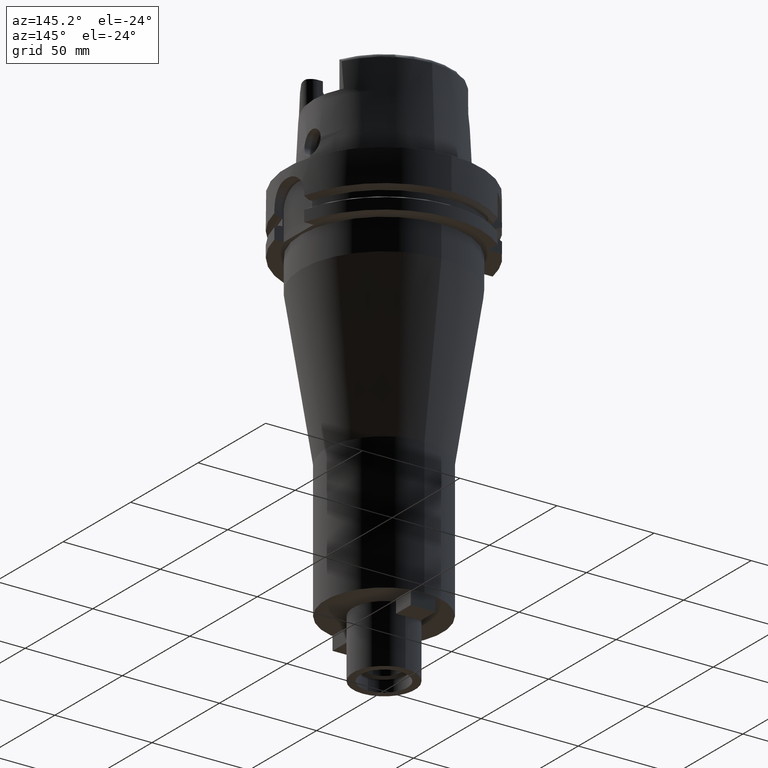
[diagram: clean part render]
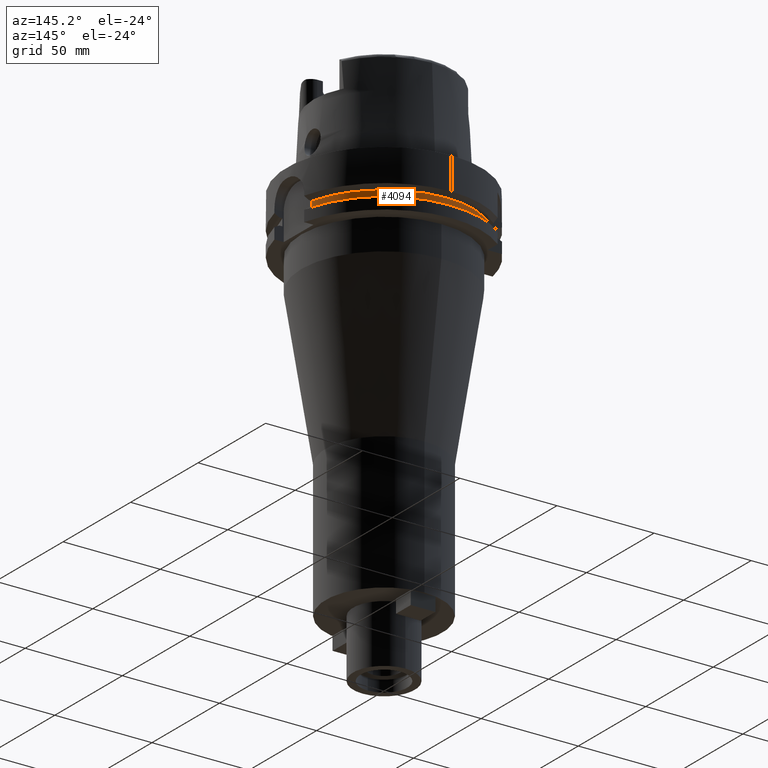
[diagram: same view with one face highlighted and labeled with its STEP entity id]
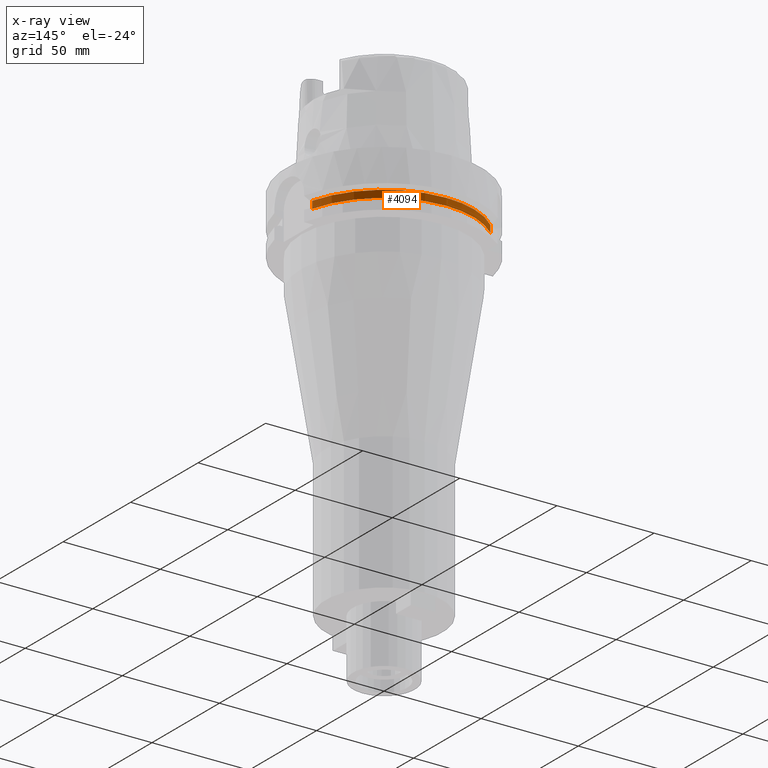
[diagram: x-ray of the same camera — body ghosted, the highlighted face saturated]
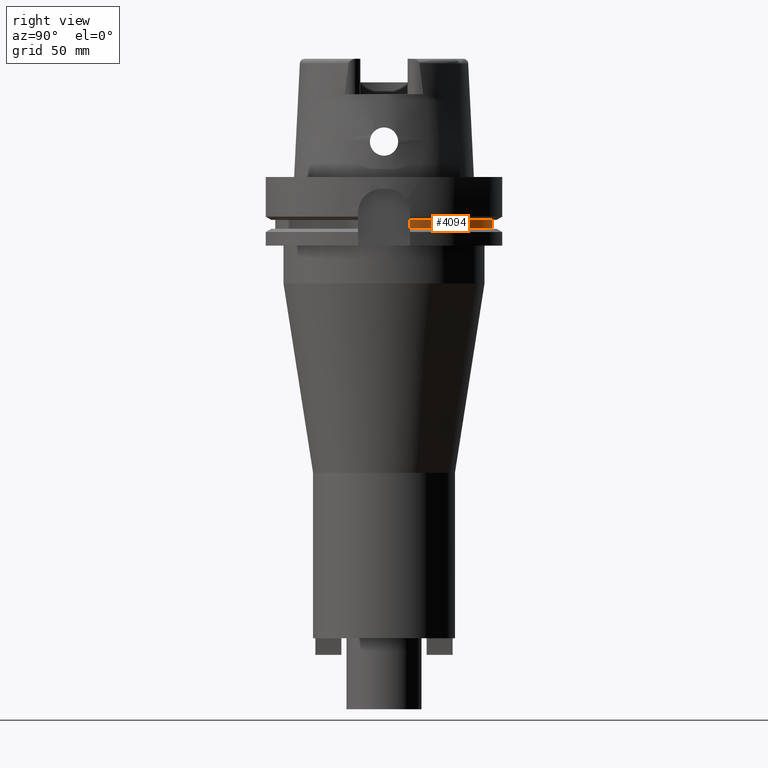
[diagram: same view with one face highlighted and labeled with its STEP entity id]
A machine part, auxiliary view. The second image highlights one B-rep face of the part: STEP entity #4094.
The next image is the same camera in x-ray: the body ghosted, the highlighted face saturated — about 0% of this face is hidden behind the body in this view.
A second angle (right view) of the same face is appended — the face is thin or edge-on in the first view.
In plain terms, the highlighted cylindrical surface (partial cylindrical patch) has radius 46 mm, axis along (0, 0, 1).
Its self-contained STEP definition (entity closure, byte-faithful):
#1648=CARTESIAN_POINT('',(0.E0,0.E0,-1.8125E1));
#1649=DIRECTION('',(0.E0,0.E0,-1.E0));
#1650=DIRECTION('',(-6.847826086957E-1,7.287474039940E-1,0.E0));
#1651=AXIS2_PLACEMENT_3D('',#1648,#1649,#1650);
#1656=CARTESIAN_POINT('',(0.E0,0.E0,-1.8125E1));
#1657=DIRECTION('',(0.E0,0.E0,-1.E0));
#1658=DIRECTION('',(0.E0,1.E0,0.E0));
#1659=AXIS2_PLACEMENT_3D('',#1656,#1657,#1658);
#1687=DIRECTION('',(0.E0,0.E0,-1.E0));
#1688=VECTOR('',#1687,3.75E0);
#1689=CARTESIAN_POINT('',(-3.15E1,3.352238058372E1,-1.8125E1));
#1690=LINE('',#1689,#1688);
#1694=DIRECTION('',(0.E0,0.E0,1.E0));
#1695=VECTOR('',#1694,3.75E0);
#1696=CARTESIAN_POINT('',(4.466542286825E1,1.1E1,-2.1875E1));
#1697=LINE('',#1696,#1695);
#1724=CARTESIAN_POINT('',(0.E0,0.E0,-2.1875E1));
#1725=DIRECTION('',(0.E0,0.E0,1.E0));
#1726=DIRECTION('',(9.709874536577E-1,2.391304347826E-1,0.E0));
#1727=AXIS2_PLACEMENT_3D('',#1724,#1725,#1726);
#1732=CARTESIAN_POINT('',(0.E0,0.E0,-2.1875E1));
#1733=DIRECTION('',(0.E0,0.E0,1.E0));
#1734=DIRECTION('',(0.E0,1.E0,0.E0));
#1735=AXIS2_PLACEMENT_3D('',#1732,#1733,#1734);
#2653=CARTESIAN_POINT('',(-3.15E1,3.352238058372E1,-2.1875E1));
#2654=VERTEX_POINT('',#2653);
#2655=CARTESIAN_POINT('',(-3.15E1,3.352238058372E1,-1.8125E1));
#2656=VERTEX_POINT('',#2655);
#2717=CARTESIAN_POINT('',(4.466542286825E1,1.1E1,-2.1875E1));
#2718=VERTEX_POINT('',#2717);
#2719=CARTESIAN_POINT('',(6.059874544424E-14,4.6E1,-2.1875E1));
#2720=VERTEX_POINT('',#2719);
#2727=CARTESIAN_POINT('',(4.466542286825E1,1.1E1,-1.8125E1));
#2728=VERTEX_POINT('',#2727);
#2729=CARTESIAN_POINT('',(-1.953992523340E-14,4.6E1,-1.8125E1));
#2730=VERTEX_POINT('',#2729);
#4079=CARTESIAN_POINT('',(0.E0,0.E0,-2.3875E2));
#4080=DIRECTION('',(0.E0,0.E0,1.E0));
#4081=DIRECTION('',(0.E0,1.E0,0.E0));
#4082=AXIS2_PLACEMENT_3D('',#4079,#4080,#4081);
#4083=CYLINDRICAL_SURFACE('',#4082,4.6E1);
#4084=ORIENTED_EDGE('',*,*,#3781,.T.);
#4086=ORIENTED_EDGE('',*,*,#4085,.F.);
#4088=ORIENTED_EDGE('',*,*,#4087,.F.);
#4089=ORIENTED_EDGE('',*,*,#3829,.T.);
#4090=ORIENTED_EDGE('',*,*,#4071,.F.);
#4091=ORIENTED_EDGE('',*,*,#4069,.F.);
#4092=EDGE_LOOP('',(#4084,#4086,#4088,#4089,#4090,#4091));
#4093=FACE_OUTER_BOUND('',#4092,.F.);
#1652=CIRCLE('',#1651,4.6E1);
#1660=CIRCLE('',#1659,4.6E1);
#1728=CIRCLE('',#1727,4.6E1);
#1736=CIRCLE('',#1735,4.6E1);
#3781=EDGE_CURVE('',#2656,#2654,#1690,.T.);
#3829=EDGE_CURVE('',#2718,#2728,#1697,.T.);
#4069=EDGE_CURVE('',#2656,#2730,#1652,.T.);
#4071=EDGE_CURVE('',#2730,#2728,#1660,.T.);
#4085=EDGE_CURVE('',#2720,#2654,#1736,.T.);
#4087=EDGE_CURVE('',#2718,#2720,#1728,.T.);
#4094=ADVANCED_FACE('',(#4093),#4083,.T.);